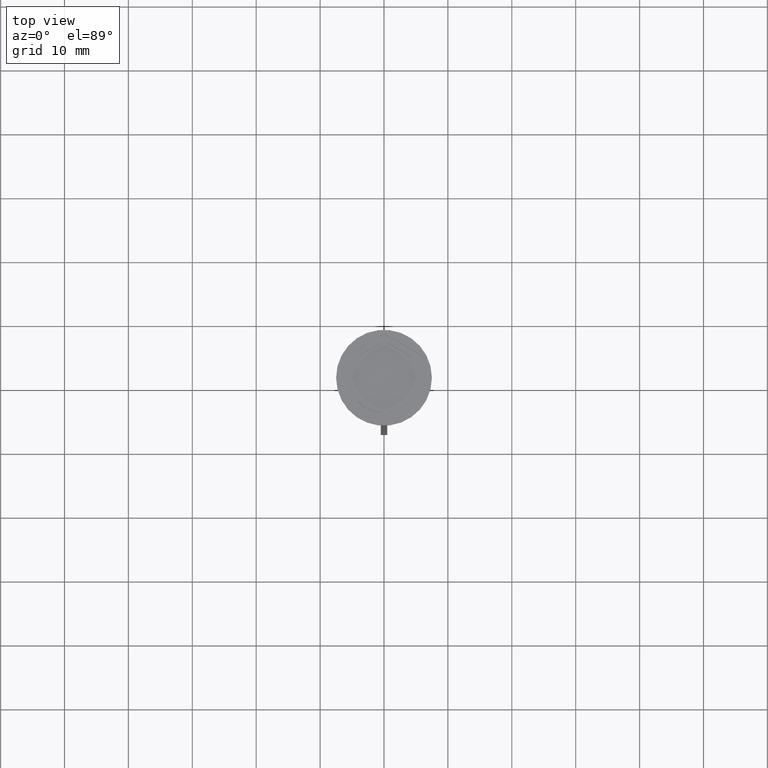
[diagram: clean part render]
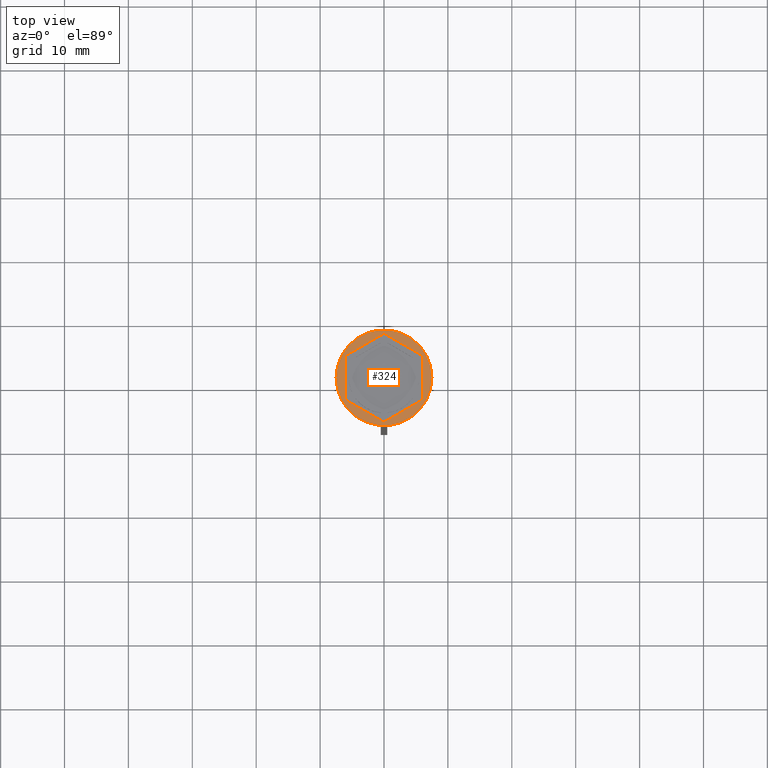
[diagram: same view with one face highlighted and labeled with its STEP entity id]
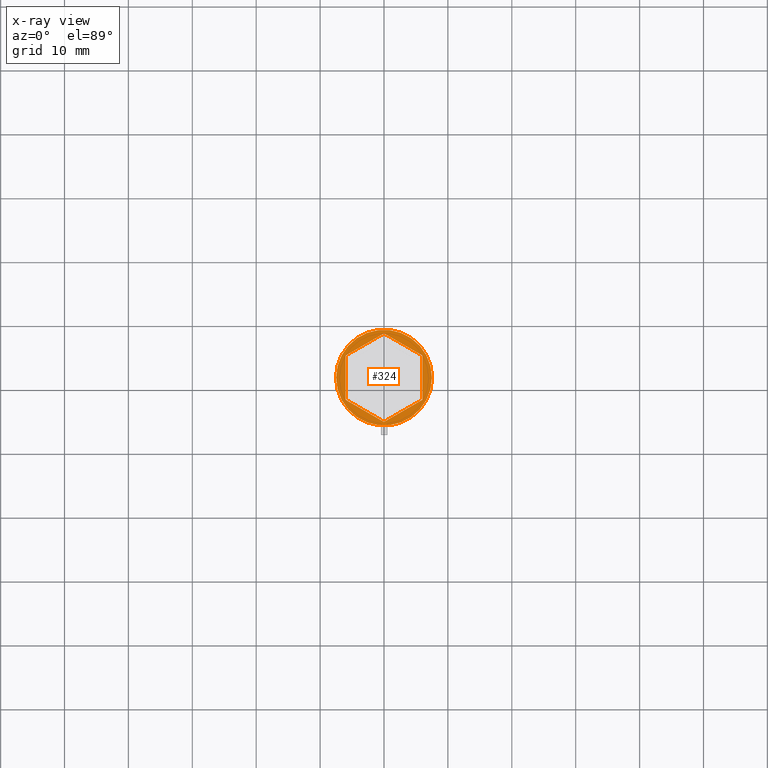
[diagram: x-ray of the same camera — body ghosted, the highlighted face saturated]
A machine part, top view. The second image highlights one B-rep face of the part: STEP entity #324.
The next image is the same camera in x-ray: the body ghosted, the highlighted face saturated — about 0% of this face is hidden behind the body in this view.
In plain terms, the highlighted planar face has unit normal (0, -0, 1).
Its self-contained STEP definition (entity closure, byte-faithful):
#19 = VERTEX_POINT ( 'NONE', #600 ) ;
#52 = EDGE_CURVE ( 'NONE', #2032, #1632, #1888, .T. ) ;
#60 = CIRCLE ( 'NONE', #2080, 7.500000000000000000 ) ;
#136 = VECTOR ( 'NONE', #2257, 1000.000000000000000 ) ;
#163 = LINE ( 'NONE', #738, #2363 ) ;
#167 = VERTEX_POINT ( 'NONE', #2374 ) ;
#184 = CARTESIAN_POINT ( 'NONE',  ( -4.280685092543093048E-16, -6.928203230275507885, 0.000000000000000000 ) ) ;
#189 = EDGE_CURVE ( 'NONE', #940, #1875, #2195, .T. ) ;
#324 = ADVANCED_FACE ( 'NONE', ( #1532, #956 ), #371, .T. ) ;
#357 = CARTESIAN_POINT ( 'NONE',  ( -6.000000000000000000, 3.464101615137752166, 0.000000000000000000 ) ) ;
#370 = EDGE_CURVE ( 'NONE', #977, #989, #769, .T. ) ;
#371 = PLANE ( 'NONE',  #904 ) ;
#428 = EDGE_CURVE ( 'NONE', #19, #167, #60, .T. ) ;
#470 = VECTOR ( 'NONE', #1911, 1000.000000000000000 ) ;
#525 = ORIENTED_EDGE ( 'NONE', *, *, #428, .T. ) ;
#562 = CARTESIAN_POINT ( 'NONE',  ( 0.000000000000000000, 0.000000000000000000, 0.000000000000000000 ) ) ;
#574 = DIRECTION ( 'NONE',  ( -0.000000000000000000, -0.000000000000000000, 1.000000000000000000 ) ) ;
#600 = CARTESIAN_POINT ( 'NONE',  ( 7.500000000000000000, 0.000000000000000000, 0.000000000000000000 ) ) ;
#601 = EDGE_CURVE ( 'NONE', #1875, #2032, #2439, .T. ) ;
#614 = DIRECTION ( 'NONE',  ( 1.000000000000000000, 0.000000000000000000, 0.000000000000000000 ) ) ;
#615 = CARTESIAN_POINT ( 'NONE',  ( 0.000000000000000000, 0.000000000000000000, 0.000000000000000000 ) ) ;
#692 = CARTESIAN_POINT ( 'NONE',  ( 6.000000000000000000, 3.464101615137753942, 0.000000000000000000 ) ) ;
#710 = DIRECTION ( 'NONE',  ( -0.8660254037844387076, 0.4999999999999998335, 0.000000000000000000 ) ) ;
#738 = CARTESIAN_POINT ( 'NONE',  ( -4.280685092543093048E-16, -6.928203230275507885, 0.000000000000000000 ) ) ;
#747 = DIRECTION ( 'NONE',  ( 1.000000000000000000, 0.000000000000000000, 0.000000000000000000 ) ) ;
#769 = LINE ( 'NONE', #1922, #470 ) ;
#834 = ORIENTED_EDGE ( 'NONE', *, *, #2178, .F. ) ;
#856 = EDGE_LOOP ( 'NONE', ( #834, #1514, #2229, #2109, #1018, #2048 ) ) ;
#861 = CARTESIAN_POINT ( 'NONE',  ( -6.000000000000000000, 3.464101615137752166, 0.000000000000000000 ) ) ;
#879 = DIRECTION ( 'NONE',  ( 0.8660254037844385966, 0.5000000000000000000, 0.000000000000000000 ) ) ;
#904 = AXIS2_PLACEMENT_3D ( 'NONE', #980, #2284, #614 ) ;
#940 = VERTEX_POINT ( 'NONE', #1459 ) ;
#956 = FACE_OUTER_BOUND ( 'NONE', #2311, .T. ) ;
#977 = VERTEX_POINT ( 'NONE', #2393 ) ;
#980 = CARTESIAN_POINT ( 'NONE',  ( 0.000000000000000000, 0.000000000000000000, 0.000000000000000000 ) ) ;
#989 = VERTEX_POINT ( 'NONE', #692 ) ;
#1000 = VECTOR ( 'NONE', #710, 1000.000000000000000 ) ;
#1018 = ORIENTED_EDGE ( 'NONE', *, *, #601, .F. ) ;
#1079 = DIRECTION ( 'NONE',  ( 0.8660254037844388186, -0.4999999999999997224, 0.000000000000000000 ) ) ;
#1117 = VECTOR ( 'NONE', #1079, 1000.000000000000114 ) ;
#1194 = DIRECTION ( 'NONE',  ( -0.000000000000000000, -0.000000000000000000, 1.000000000000000000 ) ) ;
#1195 = DIRECTION ( 'NONE',  ( 1.000000000000000000, 0.000000000000000000, 0.000000000000000000 ) ) ;
#1305 = LINE ( 'NONE', #2444, #1000 ) ;
#1330 = CARTESIAN_POINT ( 'NONE',  ( -6.000000000000000000, -3.464101615137755719, 0.000000000000000000 ) ) ;
#1443 = EDGE_CURVE ( 'NONE', #1632, #977, #163, .T. ) ;
#1459 = CARTESIAN_POINT ( 'NONE',  ( 0.000000000000000000, 6.928203230275506996, 0.000000000000000000 ) ) ;
#1472 = DIRECTION ( 'NONE',  ( -0.8660254037844385966, -0.4999999999999998890, 0.000000000000000000 ) ) ;
#1514 = ORIENTED_EDGE ( 'NONE', *, *, #370, .F. ) ;
#1532 = FACE_BOUND ( 'NONE', #856, .T. ) ;
#1605 = VECTOR ( 'NONE', #1472, 1000.000000000000227 ) ;
#1632 = VERTEX_POINT ( 'NONE', #184 ) ;
#1639 = EDGE_CURVE ( 'NONE', #167, #19, #1845, .T. ) ;
#1704 = CARTESIAN_POINT ( 'NONE',  ( 0.000000000000000000, 6.928203230275506996, 0.000000000000000000 ) ) ;
#1845 = CIRCLE ( 'NONE', #2160, 7.500000000000000000 ) ;
#1875 = VERTEX_POINT ( 'NONE', #357 ) ;
#1888 = LINE ( 'NONE', #1330, #1117 ) ;
#1911 = DIRECTION ( 'NONE',  ( 2.503857664561932376E-16, 1.000000000000000000, 0.000000000000000000 ) ) ;
#1919 = CARTESIAN_POINT ( 'NONE',  ( -6.000000000000000000, -3.464101615137755719, 0.000000000000000000 ) ) ;
#1922 = CARTESIAN_POINT ( 'NONE',  ( 5.999999999999998224, -3.464101615137753942, 0.000000000000000000 ) ) ;
#2032 = VERTEX_POINT ( 'NONE', #1919 ) ;
#2048 = ORIENTED_EDGE ( 'NONE', *, *, #189, .F. ) ;
#2080 = AXIS2_PLACEMENT_3D ( 'NONE', #562, #1194, #747 ) ;
#2109 = ORIENTED_EDGE ( 'NONE', *, *, #52, .F. ) ;
#2160 = AXIS2_PLACEMENT_3D ( 'NONE', #615, #574, #1195 ) ;
#2178 = EDGE_CURVE ( 'NONE', #989, #940, #1305, .T. ) ;
#2195 = LINE ( 'NONE', #1704, #1605 ) ;
#2222 = ORIENTED_EDGE ( 'NONE', *, *, #1639, .T. ) ;
#2229 = ORIENTED_EDGE ( 'NONE', *, *, #1443, .F. ) ;
#2257 = DIRECTION ( 'NONE',  ( 0.000000000000000000, -1.000000000000000000, 0.000000000000000000 ) ) ;
#2284 = DIRECTION ( 'NONE',  ( 0.000000000000000000, -0.000000000000000000, 1.000000000000000000 ) ) ;
#2311 = EDGE_LOOP ( 'NONE', ( #525, #2222 ) ) ;
#2363 = VECTOR ( 'NONE', #879, 1000.000000000000227 ) ;
#2374 = CARTESIAN_POINT ( 'NONE',  ( -7.500000000000000000, 9.184850993605147944E-16, 0.000000000000000000 ) ) ;
#2393 = CARTESIAN_POINT ( 'NONE',  ( 5.999999999999998224, -3.464101615137753942, 0.000000000000000000 ) ) ;
#2439 = LINE ( 'NONE', #861, #136 ) ;
#2444 = CARTESIAN_POINT ( 'NONE',  ( 6.000000000000000000, 3.464101615137753942, 0.000000000000000000 ) ) ;